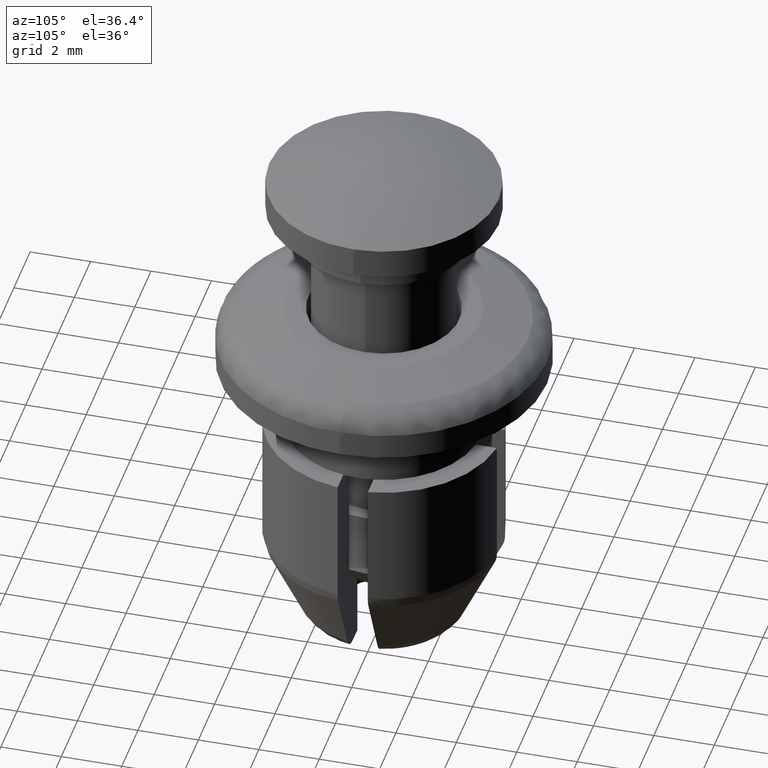
[diagram: clean part render]
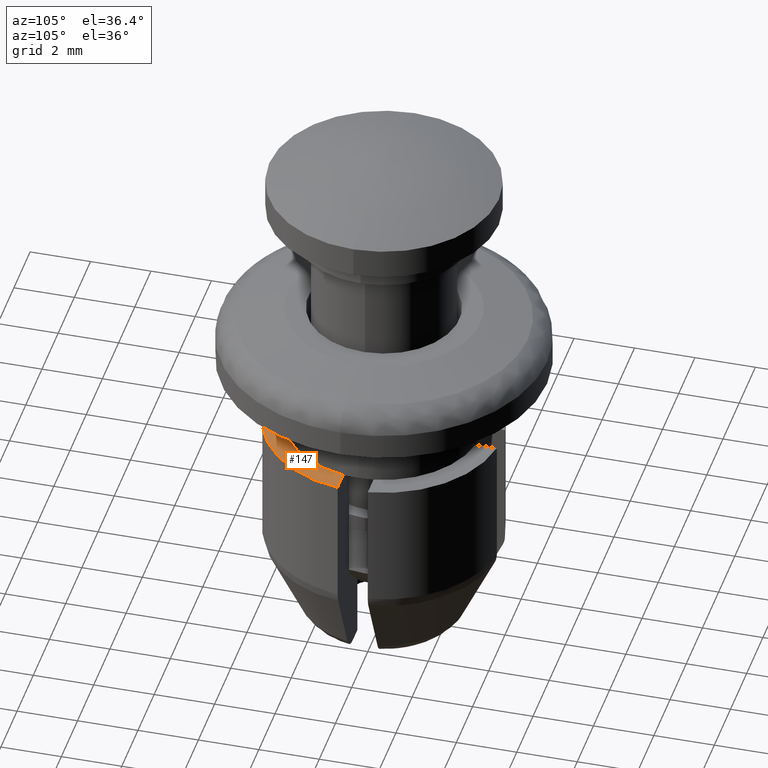
[diagram: same view with one face highlighted and labeled with its STEP entity id]
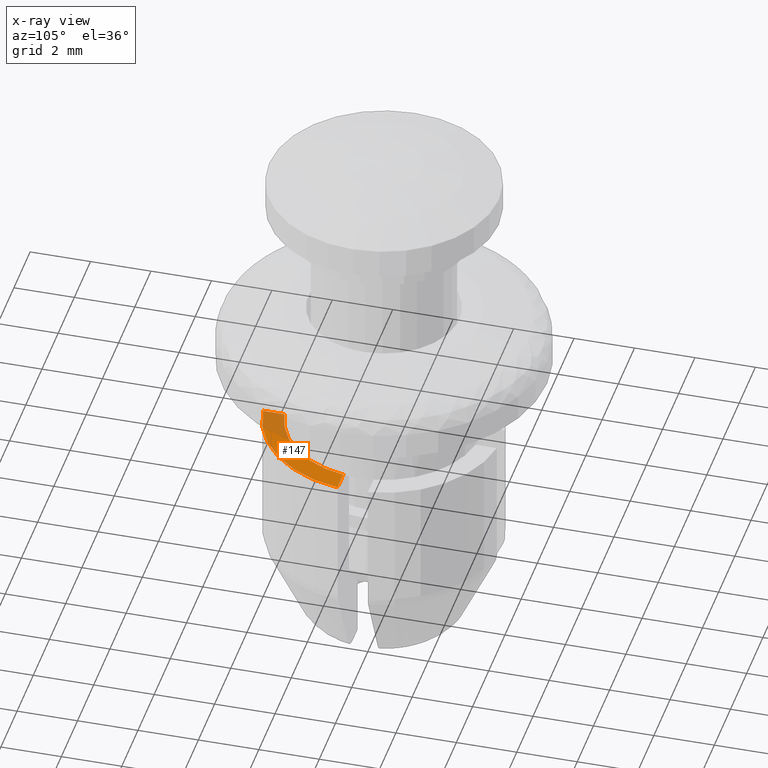
[diagram: x-ray of the same camera — body ghosted, the highlighted face saturated]
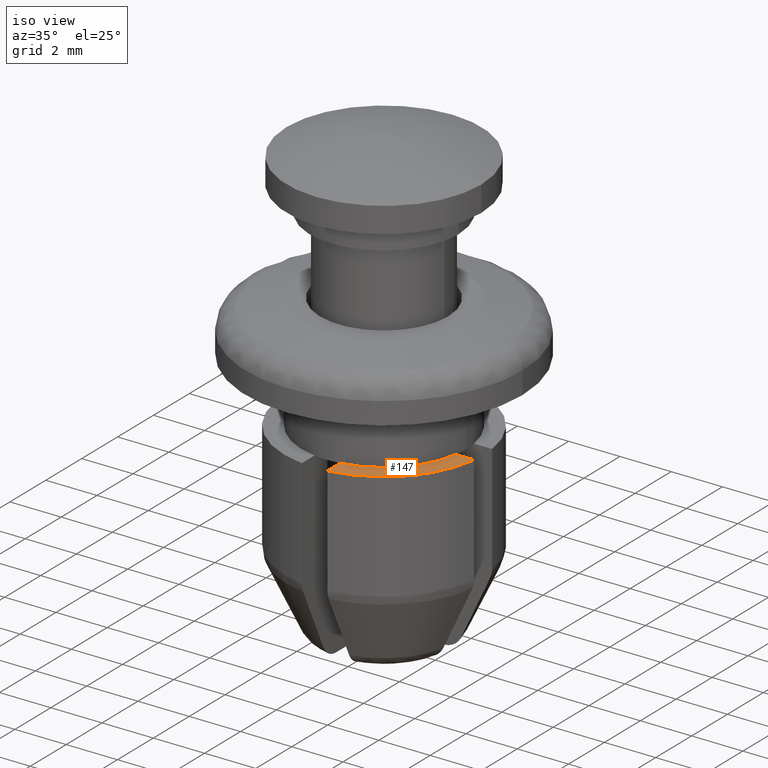
[diagram: same view with one face highlighted and labeled with its STEP entity id]
A machine part, auxiliary view. The second image highlights one B-rep face of the part: STEP entity #147.
The next image is the same camera in x-ray: the body ghosted, the highlighted face saturated — about 25% of this face is hidden behind the body in this view.
A second angle (iso view) of the same face is appended — the face is thin or edge-on in the first view.
In plain terms, the highlighted planar face has unit normal (0, 0, -1).
Its self-contained STEP definition (entity closure, byte-faithful):
#147=ADVANCED_FACE('',(#544),#543,.F.);
#543=PLANE('',#1241);
#544=FACE_OUTER_BOUND('',#1242,.T.);
#1238=CARTESIAN_POINT('',(4.20459751328E+00,-4.20459751328E+00,-4.50000000000E+00));
#1239=DIRECTION('',(0.00000000000E+00,0.00000000000E+00,-1.00000000000E+00));
#1240=DIRECTION('',(-1.00000000000E+00,0.00000000000E+00,0.00000000000E+00));
#1241=AXIS2_PLACEMENT_3D('',#1238,#1239,#1240);
#1242=EDGE_LOOP('',(#1726,#1727,#1728,#1729));
#1726=ORIENTED_EDGE('',*,*,#2062,.T.);
#1727=ORIENTED_EDGE('',*,*,#1983,.F.);
#1728=ORIENTED_EDGE('',*,*,#1953,.T.);
#1729=ORIENTED_EDGE('',*,*,#2063,.F.);
#1953=EDGE_CURVE('',#2190,#2183,#2191,.T.);
#1983=EDGE_CURVE('',#2190,#2385,#2398,.T.);
#2062=EDGE_CURVE('',#2616,#2385,#2923,.T.);
#2063=EDGE_CURVE('',#2616,#2183,#2929,.T.);
#2183=VERTEX_POINT('',#3457);
#2190=VERTEX_POINT('',#3461);
#2191=LINE('',#3462,#3463);
#2385=VERTEX_POINT('',#3607);
#2398=CIRCLE('',#3618,3.90000000000E+00);
#2616=VERTEX_POINT('',#3759);
#2923=LINE('',#3973,#3974);
#2929=CIRCLE('',#3979,3.20000000000E+00);
#3457=CARTESIAN_POINT('',(3.16069612586E+00,-5.00000000000E-01,-4.50000000000E+00));
#3461=CARTESIAN_POINT('',(3.86781592116E+00,-5.00000000000E-01,-4.50000000000E+00));
#3462=CARTESIAN_POINT('',(3.86781592116E+00,-5.00000000000E-01,-4.50000000000E+00));
#3463=VECTOR('',#3464,7.07119795307E-01);
#3464=DIRECTION('',(-1.00000000000E+00,0.00000000000E+00,0.00000000000E+00));
#3607=CARTESIAN_POINT('',(5.00000000000E-01,-3.86781592116E+00,-4.50000000000E+00));
#3615=CARTESIAN_POINT('',(0.00000000000E+00,0.00000000000E+00,-4.50000000000E+00));
#3616=DIRECTION('',(0.00000000000E+00,0.00000000000E+00,-1.00000000000E+00));
#3617=DIRECTION('',(1.00000000000E+00,-0.00000000000E+00,-0.00000000000E+00));
#3618=AXIS2_PLACEMENT_3D('',#3615,#3616,#3617);
#3759=CARTESIAN_POINT('',(5.00000000000E-01,-3.16069612586E+00,-4.50000000000E+00));
#3973=CARTESIAN_POINT('',(5.00000000000E-01,-3.16069612586E+00,-4.50000000000E+00));
#3974=VECTOR('',#3975,7.07119795307E-01);
#3975=DIRECTION('',(0.00000000000E+00,-1.00000000000E+00,0.00000000000E+00));
#3976=CARTESIAN_POINT('',(-1.97215226305E-31,0.00000000000E+00,-4.50000000000E+00));
#3977=DIRECTION('',(0.00000000000E+00,-0.00000000000E+00,1.00000000000E+00));
#3978=DIRECTION('',(1.00000000000E+00,-0.00000000000E+00,-0.00000000000E+00));
#3979=AXIS2_PLACEMENT_3D('',#3976,#3977,#3978);